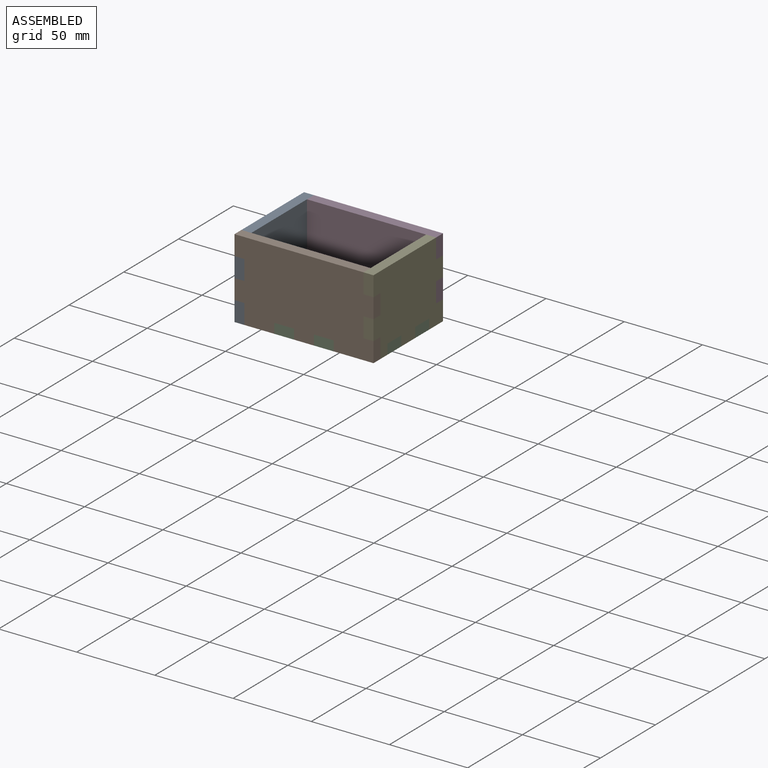
[diagram: assembled view]
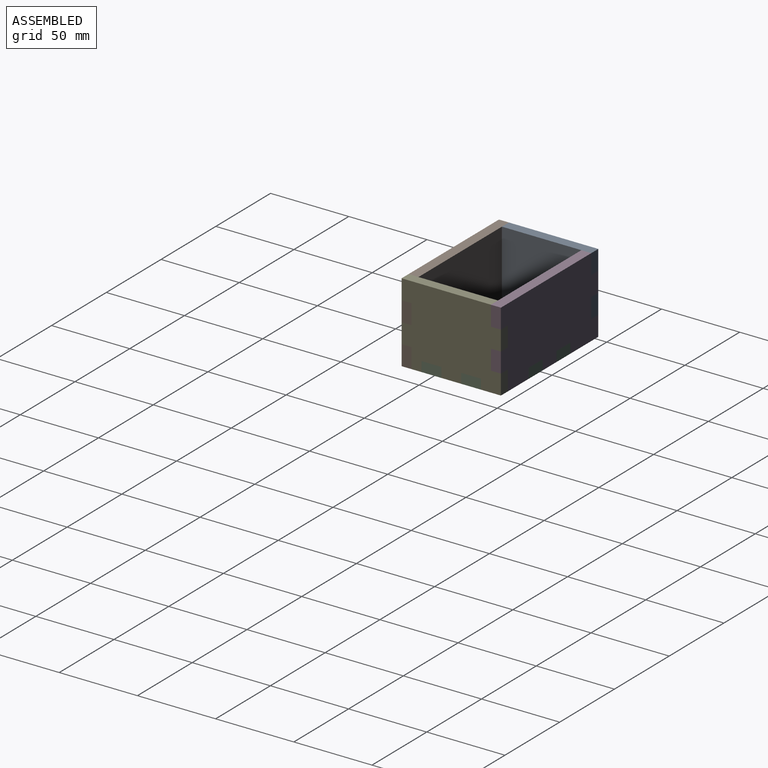
[diagram: assembled view, second angle]
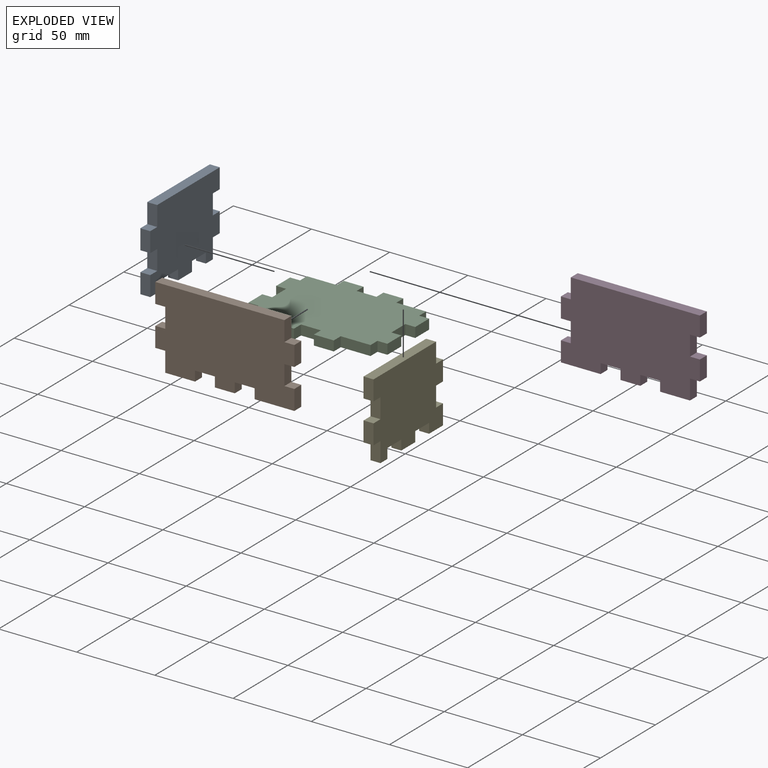
[diagram: exploded view]
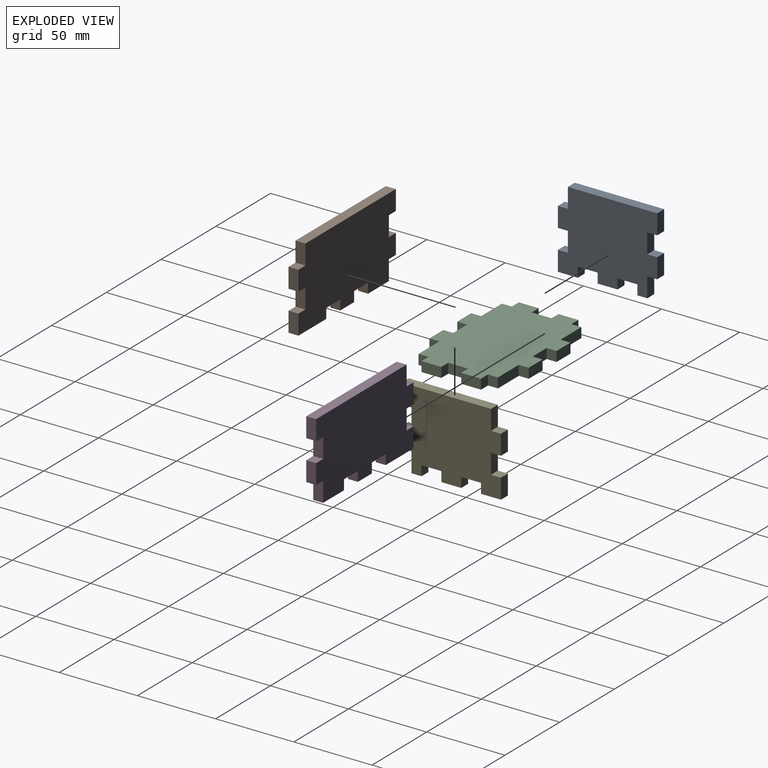
[diagram: exploded view, second angle]
ASSEMBLY  parts=5 mates=9
PART A: 26 faces, bbox 63.5x6.4x50.8 mm
  f0: plane 6.35x6.35mm, normal (0,0,-1), area 40.3mm2, adj f2,f3,f8,f23
  f1: plane 12.7x6.35mm, normal (0,0,-1), area 80.6mm2, adj f2,f3,f20,f24
  f2: plane 63.5x50.8mm, normal (0,-1,0), area 2741.9mm2, adj f0,f1,f4,f5,f6,f7,f8,f9
  f3: plane 63.5x50.8mm, normal (0,1,0), area 2741.9mm2, adj f0,f1,f4,f5,f6,f7,f8,f9
  f4: plane 12.7x6.35mm, normal (1,0,0), area 80.6mm2, adj f2,f3,f7,f17
  f5: plane 12.7x6.35mm, normal (1,0,0), area 80.6mm2, adj f2,f3,f15,f18
  f6: plane 12.7x6.35mm, normal (-1,0,0), area 80.6mm2, adj f2,f3,f11,f12
  f7: plane 57.15x6.35mm, normal (0,0,1), area 362.9mm2, adj f2,f3,f4,f10
  f8: plane 12.7x6.35mm, normal (-1,0,0), area 80.6mm2, adj f0,f2,f3,f14
  f9: plane 12.7x6.35mm, normal (0,0,-1), area 80.6mm2, adj f2,f3,f16,f21
  f10: plane 12.7x6.35mm, normal (-1,0,0), area 80.6mm2, adj f2,f3,f7,f11
  f11: plane 6.35x6.35mm, normal (0,0,-1), area 40.3mm2, adj f2,f3,f6,f10
  f12: plane 6.35x6.35mm, normal (0,0,1), area 40.3mm2, adj f2,f3,f6,f13
  f13: plane 12.7x6.35mm, normal (-1,0,0), area 80.6mm2, adj f2,f3,f12,f14
  f14: plane 6.35x6.35mm, normal (0,0,-1), area 40.3mm2, adj f2,f3,f8,f13
  f15: plane 6.35x6.35mm, normal (0,0,1), area 40.3mm2, adj f2,f3,f5,f16
  f16: plane 12.7x6.35mm, normal (1,0,0), area 80.6mm2, adj f2,f3,f9,f15
  f17: plane 6.35x6.35mm, normal (0,0,1), area 40.3mm2, adj f2,f3,f4,f19
  f18: plane 6.35x6.35mm, normal (0,0,-1), area 40.3mm2, adj f2,f3,f5,f19
  f19: plane 12.7x6.35mm, normal (1,0,0), area 80.6mm2, adj f2,f3,f17,f18
  f20: plane 6.35x6.35mm, normal (1,0,0), area 40.3mm2, adj f1,f2,f3,f22
  f21: plane 6.35x6.35mm, normal (-1,0,0), area 40.3mm2, adj f2,f3,f9,f22
  f22: plane 12.7x6.35mm, normal (0,0,-1), area 80.6mm2, adj f2,f3,f20,f21
  f23: plane 6.35x6.35mm, normal (1,0,0), area 40.3mm2, adj f0,f2,f3,f25
  f24: plane 6.35x6.35mm, normal (-1,0,0), area 40.3mm2, adj f1,f2,f3,f25
  f25: plane 12.7x6.35mm, normal (0,0,-1), area 80.6mm2, adj f2,f3,f23,f24
PART B: 26 faces, bbox 88.9x6.4x50.8 mm
  f0: plane 12.7x6.35mm, normal (0,0,-1), area 80.6mm2, adj f2,f3,f22,f23
  f1: plane 25.4x6.35mm, normal (0,0,-1), area 161.3mm2, adj f2,f3,f16,f20
  f2: plane 88.9x50.8mm, normal (0,-1,0), area 4032.3mm2, adj f0,f1,f4,f5,f6,f7,f8,f9
  f3: plane 88.9x50.8mm, normal (0,1,0), area 4032.3mm2, adj f0,f1,f4,f5,f6,f7,f8,f9
  f4: plane 12.7x6.35mm, normal (1,0,0), area 80.6mm2, adj f2,f3,f7,f17
  f5: plane 12.7x6.35mm, normal (1,0,0), area 80.6mm2, adj f2,f3,f15,f18
  f6: plane 12.7x6.35mm, normal (-1,0,0), area 80.6mm2, adj f2,f3,f11,f14
  f7: plane 82.55x6.35mm, normal (0,0,1), area 524.2mm2, adj f2,f3,f4,f10
  f8: plane 12.7x6.35mm, normal (-1,0,0), area 80.6mm2, adj f2,f3,f9,f13
  f9: plane 19.05x6.35mm, normal (0,0,-1), area 121mm2, adj f2,f3,f8,f25
  f10: plane 12.7x6.35mm, normal (-1,0,0), area 80.6mm2, adj f2,f3,f7,f11
  f11: plane 6.35x6.35mm, normal (0,0,-1), area 40.3mm2, adj f2,f3,f6,f10
  f12: plane 12.7x6.35mm, normal (-1,0,0), area 80.6mm2, adj f2,f3,f13,f14
  f13: plane 6.35x6.35mm, normal (0,0,-1), area 40.3mm2, adj f2,f3,f8,f12
  f14: plane 6.35x6.35mm, normal (0,0,1), area 40.3mm2, adj f2,f3,f6,f12
  f15: plane 6.35x6.35mm, normal (0,0,1), area 40.3mm2, adj f2,f3,f5,f16
  f16: plane 12.7x6.35mm, normal (1,0,0), area 80.6mm2, adj f1,f2,f3,f15
  f17: plane 6.35x6.35mm, normal (0,0,1), area 40.3mm2, adj f2,f3,f4,f19
  f18: plane 6.35x6.35mm, normal (0,0,-1), area 40.3mm2, adj f2,f3,f5,f19
  f19: plane 12.7x6.35mm, normal (1,0,0), area 80.6mm2, adj f2,f3,f17,f18
  f20: plane 6.35x6.35mm, normal (-1,0,0), area 40.3mm2, adj f1,f2,f3,f21
  f21: plane 12.7x6.35mm, normal (0,0,-1), area 80.6mm2, adj f2,f3,f20,f22
  f22: plane 6.35x6.35mm, normal (1,0,0), area 40.3mm2, adj f0,f2,f3,f21
  f23: plane 6.35x6.35mm, normal (-1,0,0), area 40.3mm2, adj f0,f2,f3,f24
  f24: plane 12.7x6.35mm, normal (0,0,-1), area 80.6mm2, adj f2,f3,f23,f25
  f25: plane 6.35x6.35mm, normal (1,0,0), area 40.3mm2, adj f2,f3,f9,f24
PART C: 38 faces, bbox 88.9x63.5x6.4 mm
  f0: plane 12.7x6.35mm, normal (-1,0,0), area 80.6mm2, adj f12,f13,f31,f35
  f1: plane 12.7x6.35mm, normal (1,0,0), area 80.6mm2, adj f12,f13,f28,f32
  f2: plane 6.35x6.35mm, normal (-1,0,0), area 40.3mm2, adj f7,f12,f13,f29
  f3: plane 6.35x6.35mm, normal (1,0,0), area 40.3mm2, adj f11,f12,f13,f26
  f4: plane 12.7x6.35mm, normal (0,1,0), area 80.6mm2, adj f12,f13,f19,f23
  f5: plane 12.7x6.35mm, normal (0,-1,0), area 80.6mm2, adj f12,f13,f16,f20
  f6: plane 19.05x6.35mm, normal (0,1,0), area 121mm2, adj f10,f12,f13,f17
  f7: plane 19.05x6.35mm, normal (0,-1,0), area 121mm2, adj f2,f12,f13,f14
  f8: plane 6.35x6.35mm, normal (1,0,0), area 40.3mm2, adj f9,f12,f13,f34
  f9: plane 19.05x6.35mm, normal (0,1,0), area 121mm2, adj f8,f12,f13,f25
  f10: plane 6.35x6.35mm, normal (-1,0,0), area 40.3mm2, adj f6,f12,f13,f37
  f11: plane 19.05x6.35mm, normal (0,-1,0), area 121mm2, adj f3,f12,f13,f22
  f12: plane 88.9x63.5mm, normal (0,0,1), area 4516.1mm2, adj f0,f1,f2,f3,f4,f5,f6,f7
  f13: plane 88.9x63.5mm, normal (0,0,-1), area 4516.1mm2, adj f0,f1,f2,f3,f4,f5,f6,f7
  f14: plane 6.35x6.35mm, normal (-1,0,0), area 40.3mm2, adj f7,f12,f13,f15
  f15: plane 12.7x6.35mm, normal (0,-1,0), area 80.6mm2, adj f12,f13,f14,f16
  f16: plane 6.35x6.35mm, normal (1,0,0), area 40.3mm2, adj f5,f12,f13,f15
  f17: plane 6.35x6.35mm, normal (-1,0,0), area 40.3mm2, adj f6,f12,f13,f18
  f18: plane 12.7x6.35mm, normal (0,1,0), area 80.6mm2, adj f12,f13,f17,f19
  f19: plane 6.35x6.35mm, normal (1,0,0), area 40.3mm2, adj f4,f12,f13,f18
  f20: plane 6.35x6.35mm, normal (-1,0,0), area 40.3mm2, adj f5,f12,f13,f21
  f21: plane 12.7x6.35mm, normal (0,-1,0), area 80.6mm2, adj f12,f13,f20,f22
  f22: plane 6.35x6.35mm, normal (1,0,0), area 40.3mm2, adj f11,f12,f13,f21
  f23: plane 6.35x6.35mm, normal (-1,0,0), area 40.3mm2, adj f4,f12,f13,f24
  f24: plane 12.7x6.35mm, normal (0,1,0), area 80.6mm2, adj f12,f13,f23,f25
  f25: plane 6.35x6.35mm, normal (1,0,0), area 40.3mm2, adj f9,f12,f13,f24
  f26: plane 6.35x6.35mm, normal (0,-1,0), area 40.3mm2, adj f3,f12,f13,f27
  f27: plane 12.7x6.35mm, normal (1,0,0), area 80.6mm2, adj f12,f13,f26,f28
  f28: plane 6.35x6.35mm, normal (0,1,0), area 40.3mm2, adj f1,f12,f13,f27
  f29: plane 6.35x6.35mm, normal (0,-1,0), area 40.3mm2, adj f2,f12,f13,f30
  f30: plane 12.7x6.35mm, normal (-1,0,0), area 80.6mm2, adj f12,f13,f29,f31
  f31: plane 6.35x6.35mm, normal (0,1,0), area 40.3mm2, adj f0,f12,f13,f30
  f32: plane 6.35x6.35mm, normal (0,-1,0), area 40.3mm2, adj f1,f12,f13,f33
  f33: plane 12.7x6.35mm, normal (1,0,0), area 80.6mm2, adj f12,f13,f32,f34
  f34: plane 6.35x6.35mm, normal (0,1,0), area 40.3mm2, adj f8,f12,f13,f33
  f35: plane 6.35x6.35mm, normal (0,-1,0), area 40.3mm2, adj f0,f12,f13,f36
  f36: plane 12.7x6.35mm, normal (-1,0,0), area 80.6mm2, adj f12,f13,f35,f37
  f37: plane 6.35x6.35mm, normal (0,1,0), area 40.3mm2, adj f10,f12,f13,f36
PART D: same geometry as B
PART E: same geometry as A
PLACE A rot(axis=(0,0,-1),90deg) t=(-76.83,107.77,-217.32)mm
PLACE B t=(-38.73,169.25,-144.35)mm
PLACE C t=(-38.73,194.65,-169.75)mm
PLACE D rot(axis=(0,0,1),180deg) t=(-38.73,220.05,-144.35)mm
PLACE E rot(axis=(0,0,1),90deg) t=(-0.63,281.52,-217.32)mm
MATE planar A.f2 <-> D.f16  axis (-1,0,0) through (-83.18,194.65,-143.04)mm
MATE planar B.f2 <-> A.f16  axis (0,-1,0) through (-38.73,162.9,-143.46)mm
MATE planar A.f0 <-> B.f9  axis (0,0,-1) through (-80.01,216.87,-169.75)mm
MATE planar E.f2 <-> C.f27  axis (1,0,0) through (5.72,194.65,-143.04)mm
MATE planar D.f9 <-> E.f0  axis (0,0,-1) through (-10.16,223.22,-169.75)mm
MATE planar D.f2 <-> E.f16  axis (0,1,0) through (-38.73,226.4,-143.46)mm
MATE planar C.f12 <-> D.f24  axis (0,0,1) through (-38.73,194.65,-163.4)mm
MATE planar A.f0 <-> D.f9  axis (0,0,-1) through (-80.01,216.87,-169.75)mm
MATE planar D.f2 <-> C.f24  axis (0,1,0) through (-38.73,226.4,-143.46)mm
